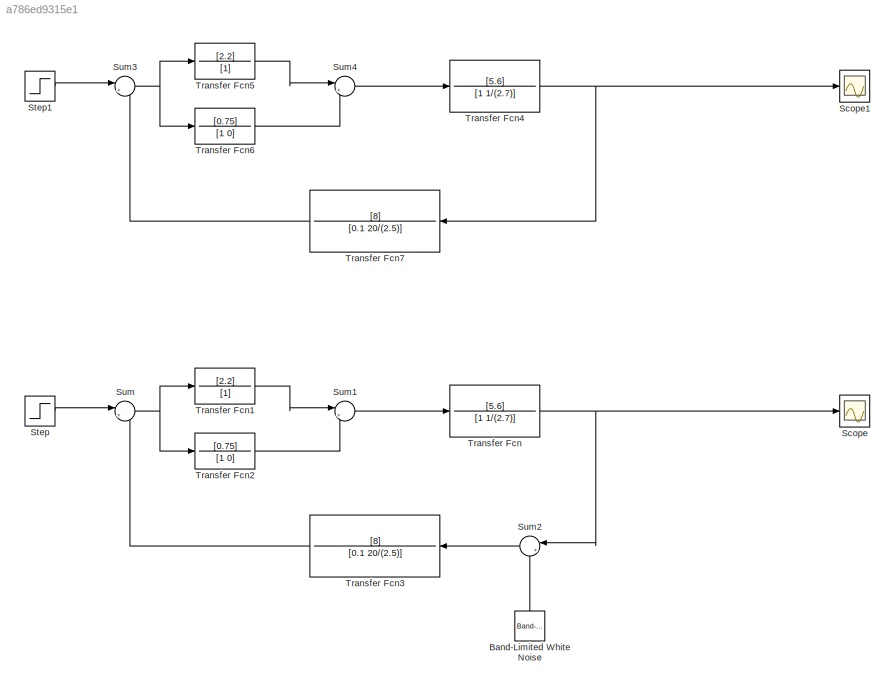
MODEL slx_a786ed9315e1
KIND model
CONFIG AbsTol = auto
CONFIG EnableMultiTasking = off
CONFIG FixedStep = auto
CONFIG MaxStep = auto
CONFIG MinStep = auto
CONFIG RelTol = 1e-3
CONFIG SampleTimeConstraint = Unconstrained
CONFIG SolverName = VariableStepAuto
CONFIG StartTime = 0.0
CONFIG StopTime = 100.0
BLOCK [Reference] Band-Limited White Noise  REF=simulink/Sources/Band-Limited
White Noise
  NameLocation = right
  Ports = [0, 1]
  SourceBlock = simulink/Sources/Band-Limited\nWhite Noise
  SourceProductBaseCode = SL
  SourceType = Band-Limited White Noise.
BLOCK [Scope] Scope
  Floating = off
  NumInputPorts = 1
  Ports = [1]
  ScopeSpecificationString = Simulink.scopes.TimeScopeBlockCfg('CurrentConfiguration', extmgr.ConfigurationSet(extmgr.Configuration('Core','General UI',true),extmgr.Configuration('Core','Source UI',true),extmgr.Configuration('Sources','WiredSimulink',true),extmgr.Configuration('Visuals','Time Domain',true,'SerializedDisplays',{struct('MinYLimReal','-2.01846','MaxYLimReal','2.1963','YLabelReal','','MinYLimMag','0.00000','MaxYL...<+1405ch>
BLOCK [Scope] Scope1
  Floating = off
  NumInputPorts = 1
  Ports = [1]
  ScopeSpecificationString = Simulink.scopes.TimeScopeBlockCfg('CurrentConfiguration', extmgr.ConfigurationSet(extmgr.Configuration('Core','General UI',true),extmgr.Configuration('Core','Source UI',true),extmgr.Configuration('Sources','WiredSimulink',true,'DataLoggingVariableName','ScopeData1'),extmgr.Configuration('Visuals','Time Domain',true,'SerializedDisplays',{struct('MinYLimReal','-2.01846','MaxYLimReal','2.1963','YLabe...<+1445ch>
BLOCK [Step] Step
  Before = 10
  SampleTime = 0
  Time = 0
BLOCK [Step] Step1
  Before = 10
  SampleTime = 0
  Time = 0
BLOCK [Sum] Sum
  Inputs = |+-
  Ports = [2, 1]
BLOCK [Sum] Sum1
  Inputs = |++
  Ports = [2, 1]
BLOCK [Sum] Sum2
  Inputs = |++
  NameLocation = top
  Ports = [2, 1]
BLOCK [Sum] Sum3
  Inputs = |+-
  Ports = [2, 1]
BLOCK [Sum] Sum4
  Inputs = |++
  Ports = [2, 1]
BLOCK [TransferFcn] Transfer Fcn
  Denominator = [1 1/(2.7)]
  Numerator = [5.6]
BLOCK [TransferFcn] Transfer Fcn1
  Denominator = [1]
  Numerator = [2.2]
BLOCK [TransferFcn] Transfer Fcn2
  Denominator = [1 0]
  Numerator = [0.75]
BLOCK [TransferFcn] Transfer Fcn3
  Denominator = [0.1 20/(2.5)]
  NameLocation = top
  Numerator = [8]
BLOCK [TransferFcn] Transfer Fcn4
  Denominator = [1 1/(2.7)]
  Numerator = [5.6]
BLOCK [TransferFcn] Transfer Fcn5
  Denominator = [1]
  Numerator = [2.2]
BLOCK [TransferFcn] Transfer Fcn6
  Denominator = [1 0]
  Numerator = [0.75]
BLOCK [TransferFcn] Transfer Fcn7
  Denominator = [0.1 20/(2.5)]
  NameLocation = top
  Numerator = [8]
LINE Band-Limited White Noise:1 -> Sum2:2
LINE Step1:1 -> Sum3:1
LINE Step:1 -> Sum:1
LINE Sum1:1 -> Transfer Fcn:1
LINE Sum2:1 -> Transfer Fcn3:1
NET Sum3:1 -> Transfer Fcn5:1, Transfer Fcn6:1
LINE Sum4:1 -> Transfer Fcn4:1
NET Sum:1 -> Transfer Fcn1:1, Transfer Fcn2:1
LINE Transfer Fcn1:1 -> Sum1:1
LINE Transfer Fcn2:1 -> Sum1:2
LINE Transfer Fcn3:1 -> Sum:2
NET Transfer Fcn4:1 -> Scope1:1, Transfer Fcn7:1
LINE Transfer Fcn5:1 -> Sum4:1
LINE Transfer Fcn6:1 -> Sum4:2
LINE Transfer Fcn7:1 -> Sum3:2
NET Transfer Fcn:1 -> Scope:1, Sum2:1
note: NET lines group one-source signal fan-out (src -> all destinations, sorted); 1:1 wires keep LINE
